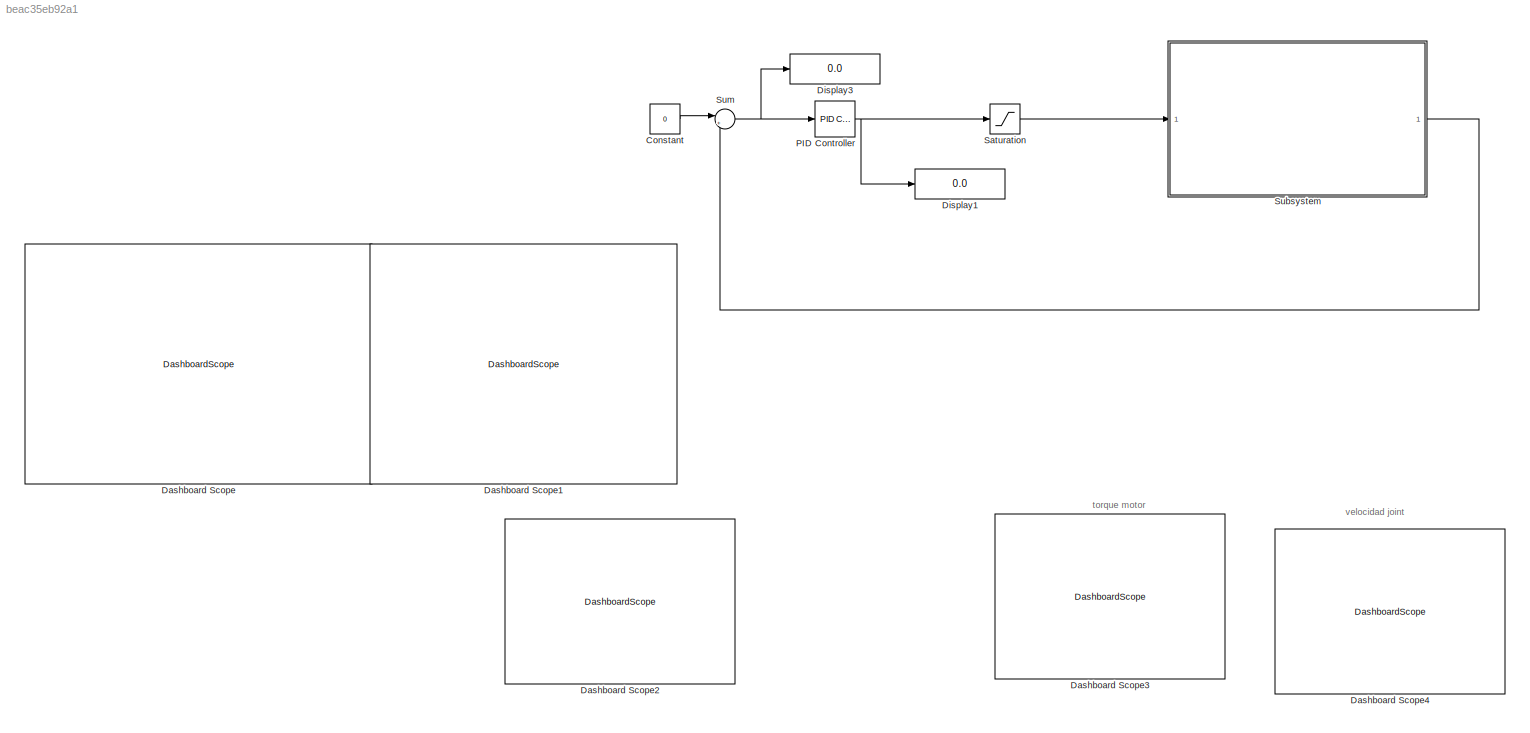
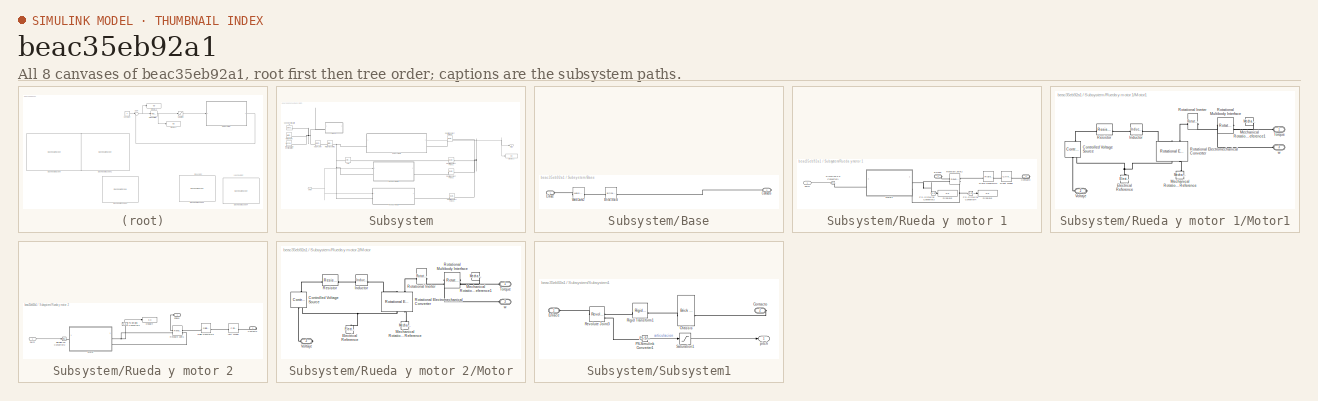
[diagram: thumbnail index - all 8 canvases of the model, root first then tree order]
MODEL slx_beac35eb92a1
KIND model
CONFIG AbsTol = auto
CONFIG EnableMultiTasking = off
CONFIG FixedStep = auto
CONFIG MaxStep = 5e-3
CONFIG MinStep = auto
CONFIG RelTol = 1e-3
CONFIG SampleTimeConstraint = Unconstrained
CONFIG SolverName = ode15s
CONFIG StartTime = 0.0
CONFIG StopTime = 10
BLOCK [Constant] Constant
  Value = 0
BLOCK [DashboardScope] Dashboard Scope
BLOCK [DashboardScope] Dashboard Scope1
BLOCK [DashboardScope] Dashboard Scope2
BLOCK [DashboardScope] Dashboard Scope3
BLOCK [DashboardScope] Dashboard Scope4
BLOCK [Display] Display1
  Decimation = 1
BLOCK [Display] Display3
  Decimation = 1
BLOCK [Reference] PID Controller  REF=slpidlib/PID Controller
  LibrarySourceBlock = simulink/Continuous/PID Controller
  SourceBlock = slpidlib/PID Controller
  SourceType = PID 1dof
BLOCK [Saturate] Saturation
  LowerLimit = -255
  NameLocation = right
  UpperLimit = 255
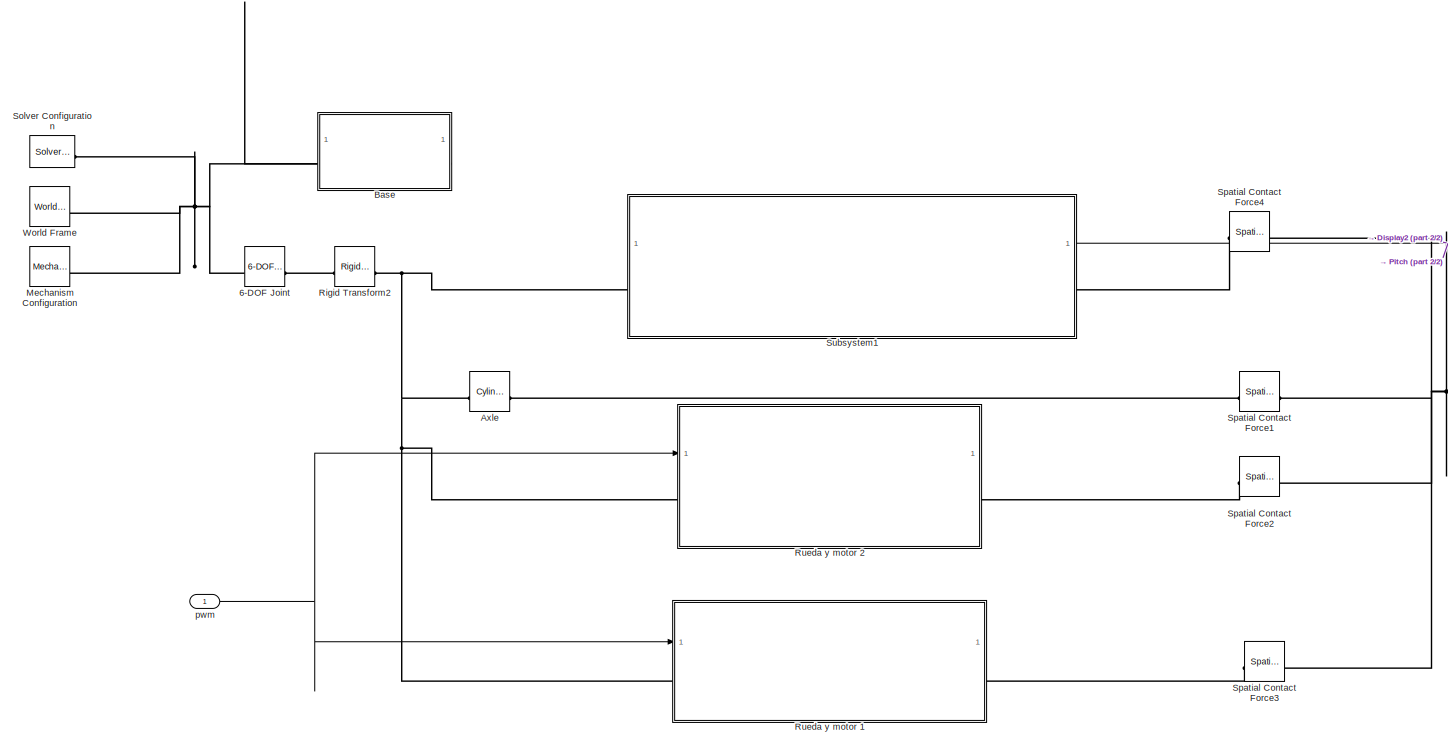
[diagram: Subsystem - part 1/2, most of the canvas]
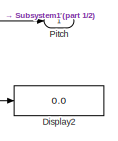
[diagram: Subsystem - part 2/2, middle right region]
BLOCK [SubSystem] Subsystem
BLOCK [Reference] Subsystem/6-DOF Joint  REF=sm_lib/Joints/6-DOF Joint
  SourceBlock = sm_lib/Joints/6-DOF Joint
  SourceType = 6-DOF Joint
BLOCK [Reference] Subsystem/Axle  REF=sm_lib/Body Elements/Cylindrical Solid
  NameLocation = top
  SourceBlock = sm_lib/Body Elements/Cylindrical Solid
  SourceType = Cylindrical Solid
BLOCK [SubSystem] Subsystem/Base
BLOCK [Reference] Subsystem/Base/Brick Solid  REF=sm_lib/Body Elements/Brick Solid
  NameLocation = top
  SourceBlock = sm_lib/Body Elements/Brick Solid
  SourceType = Brick Solid
BLOCK [PMIOPort] Subsystem/Base/Contacto
  Port = 2
  Side = Right
BLOCK [PMIOPort] Subsystem/Base/Enlace
  Side = Left
BLOCK [Reference] Subsystem/Base/Weld Joint2  REF=sm_lib/Joints/Weld Joint
  SourceBlock = sm_lib/Joints/Weld Joint
  SourceType = Weld Joint
BLOCK [Display] Subsystem/Display2
  Decimation = 1
BLOCK [Reference] Subsystem/Mechanism Configuration  REF=sm_lib/Utilities/Mechanism
Configuration
  SourceBlock = sm_lib/Utilities/Mechanism\nConfiguration
  SourceType = Mechanism\nConfiguration
BLOCK [Outport] Subsystem/Pitch
BLOCK [Reference] Subsystem/Rigid Transform2  REF=sm_lib/Frames and
Transforms/Rigid
Transform
  SourceBlock = sm_lib/Frames and\nTransforms/Rigid\nTransform
  SourceType = Rigid\nTransform
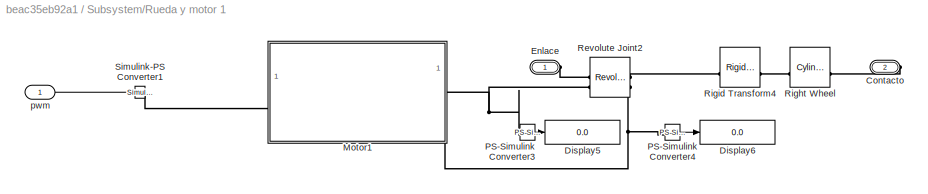
BLOCK [SubSystem] Subsystem/Rueda y motor 1
  PortSchema = {"entries":[{"content":{"sides":[{"content":{"connectorIds":["LConn1","In1"]},"type":"ConnectorPlacement.EquallySpacedRectSide","uuid":"375b66b7-af66-4e77-84dc-5362bf556b25"},{"content":{"connectorIds":["RConn1"],"side":"RIGHT"},"type":"ConnectorPlacement.EquallySpacedRectSide","uuid":"61738b0e-159b-4922-8d26-6bdb85cd6176"},{"content":{"side":"TOP"},"type":"ConnectorPlacement.EquallySpacedRectSide...<+233ch>
BLOCK [PMIOPort] Subsystem/Rueda y motor 1/Contacto
  Port = 2
  Side = Right
BLOCK [Display] Subsystem/Rueda y motor 1/Display5
  Decimation = 1
BLOCK [Display] Subsystem/Rueda y motor 1/Display6
  Decimation = 1
BLOCK [PMIOPort] Subsystem/Rueda y motor 1/Enlace
  Side = Left
BLOCK [SubSystem] Subsystem/Rueda y motor 1/Motor1
  NameLocation = top
BLOCK [Reference] Subsystem/Rueda y motor 1/Motor1/Controlled Voltage Source  REF=fl_lib/Electrical/Electrical Sources/Controlled Voltage
Source
  NameLocation = right
  SourceBlock = fl_lib/Electrical/Electrical Sources/Controlled Voltage\nSource
  SourceType = Controlled Voltage\nSource
BLOCK [Reference] Subsystem/Rueda y motor 1/Motor1/Electrical Reference  REF=fl_lib/Electrical/Electrical Elements/Electrical Reference
  NameLocation = right
  SourceBlock = fl_lib/Electrical/Electrical Elements/Electrical Reference
  SourceType = Electrical Reference
BLOCK [Reference] Subsystem/Rueda y motor 1/Motor1/Inductor  REF=fl_lib/Electrical/Electrical Elements/Inductor
  SourceBlock = fl_lib/Electrical/Electrical Elements/Inductor
  SourceType = Inductor
BLOCK [Reference] Subsystem/Rueda y motor 1/Motor1/Mechanical Rotational Reference  REF=fl_lib/Mechanical/Rotational Elements/Mechanical
Rotational Reference
  NameLocation = right
  SourceBlock = fl_lib/Mechanical/Rotational Elements/Mechanical\nRotational Reference
  SourceType = Mechanical\nRotational Reference
BLOCK [Reference] Subsystem/Rueda y motor 1/Motor1/Mechanical Rotational Reference1  REF=fl_lib/Mechanical/Rotational Elements/Mechanical
Rotational Reference
  NameLocation = top
  SourceBlock = fl_lib/Mechanical/Rotational Elements/Mechanical\nRotational Reference
  SourceType = Mechanical\nRotational Reference
BLOCK [Reference] Subsystem/Rueda y motor 1/Motor1/Resistor  REF=fl_lib/Electrical/Electrical Elements/Resistor
  SourceBlock = fl_lib/Electrical/Electrical Elements/Resistor
  SourceType = Resistor
BLOCK [Reference] Subsystem/Rueda y motor 1/Motor1/Rotational Electromechanical Converter  REF=fl_lib/Electrical/Electrical Elements/Rotational
Electromechanical
Converter
  NameLocation = right
  SourceBlock = fl_lib/Electrical/Electrical Elements/Rotational\nElectromechanical\nConverter
  SourceType = Rotational\nElectromechanical\nConverter
BLOCK [Reference] Subsystem/Rueda y motor 1/Motor1/Rotational Inerter  REF=fl_lib/Mechanical/Rotational Elements/Rotational Inerter
  SourceBlock = fl_lib/Mechanical/Rotational Elements/Rotational Inerter
  SourceType = Rotational Inerter
BLOCK [Reference] Subsystem/Rueda y motor 1/Motor1/Rotational Multibody Interface  REF=fl_lib/Mechanical/Multibody Interfaces/Rotational Multibody
Interface
  NameLocation = top
  SourceBlock = fl_lib/Mechanical/Multibody Interfaces/Rotational Multibody\nInterface
  SourceType = Rotational Multibody\nInterface
BLOCK [PMIOPort] Subsystem/Rueda y motor 1/Motor1/Torque
  NameLocation = top
  Side = Left
BLOCK [PMIOPort] Subsystem/Rueda y motor 1/Motor1/Voltaje
  Port = 2
  Side = Right
BLOCK [PMIOPort] Subsystem/Rueda y motor 1/Motor1/w
  NameLocation = top
  Port = 3
  Side = Left
BLOCK [Reference] Subsystem/Rueda y motor 1/PS-Simulink Converter3  REF=nesl_utility/PS-Simulink
Converter
  SourceBlock = nesl_utility/PS-Simulink\nConverter
  SourceType = PS-Simulink\nConverter
BLOCK [Reference] Subsystem/Rueda y motor 1/PS-Simulink Converter4  REF=nesl_utility/PS-Simulink
Converter
  NameLocation = left
  SourceBlock = nesl_utility/PS-Simulink\nConverter
  SourceType = PS-Simulink\nConverter
BLOCK [Reference] Subsystem/Rueda y motor 1/Revolute Joint2  REF=sm_lib/Joints/Revolute Joint
  SourceBlock = sm_lib/Joints/Revolute Joint
  SourceType = Revolute Joint
BLOCK [Reference] Subsystem/Rueda y motor 1/Right Wheel  REF=sm_lib/Body Elements/Cylindrical Solid
  NameLocation = top
  SourceBlock = sm_lib/Body Elements/Cylindrical Solid
  SourceType = Cylindrical Solid
BLOCK [Reference] Subsystem/Rueda y motor 1/Rigid Transform4  REF=sm_lib/Frames and
Transforms/Rigid
Transform
  SourceBlock = sm_lib/Frames and\nTransforms/Rigid\nTransform
  SourceType = Rigid\nTransform
BLOCK [Reference] Subsystem/Rueda y motor 1/Simulink-PS Converter1  REF=nesl_utility/Simulink-PS
Converter
  SourceBlock = nesl_utility/Simulink-PS\nConverter
  SourceType = Simulink-PS\nConverter
BLOCK [Inport] Subsystem/Rueda y motor 1/pwm
BLOCK [SubSystem] Subsystem/Rueda y motor 2
  PortSchema = {"entries":[{"content":{"sides":[{"content":{"connectorIds":["LConn1","In1"]},"type":"ConnectorPlacement.EquallySpacedRectSide","uuid":"375b66b7-af66-4e77-84dc-5362bf556b25"},{"content":{"connectorIds":["RConn1"],"side":"RIGHT"},"type":"ConnectorPlacement.EquallySpacedRectSide","uuid":"61738b0e-159b-4922-8d26-6bdb85cd6176"},{"content":{"side":"TOP"},"type":"ConnectorPlacement.EquallySpacedRectSide...<+233ch>
BLOCK [PMIOPort] Subsystem/Rueda y motor 2/Contacto
  Port = 2
  Side = Right
BLOCK [Display] Subsystem/Rueda y motor 2/Display4
  Decimation = 1
BLOCK [PMIOPort] Subsystem/Rueda y motor 2/Enlace
  Side = Left
BLOCK [Reference] Subsystem/Rueda y motor 2/Left Wheel  REF=sm_lib/Body Elements/Cylindrical Solid
  NameLocation = top
  SourceBlock = sm_lib/Body Elements/Cylindrical Solid
  SourceType = Cylindrical Solid
BLOCK [SubSystem] Subsystem/Rueda y motor 2/Motor
  NameLocation = top
BLOCK [Reference] Subsystem/Rueda y motor 2/Motor/Controlled Voltage Source  REF=fl_lib/Electrical/Electrical Sources/Controlled Voltage
Source
  NameLocation = right
  SourceBlock = fl_lib/Electrical/Electrical Sources/Controlled Voltage\nSource
  SourceType = Controlled Voltage\nSource
BLOCK [Reference] Subsystem/Rueda y motor 2/Motor/Electrical Reference  REF=fl_lib/Electrical/Electrical Elements/Electrical Reference
  NameLocation = right
  SourceBlock = fl_lib/Electrical/Electrical Elements/Electrical Reference
  SourceType = Electrical Reference
BLOCK [Reference] Subsystem/Rueda y motor 2/Motor/Inductor  REF=fl_lib/Electrical/Electrical Elements/Inductor
  SourceBlock = fl_lib/Electrical/Electrical Elements/Inductor
  SourceType = Inductor
BLOCK [Reference] Subsystem/Rueda y motor 2/Motor/Mechanical Rotational Reference  REF=fl_lib/Mechanical/Rotational Elements/Mechanical
Rotational Reference
  NameLocation = right
  SourceBlock = fl_lib/Mechanical/Rotational Elements/Mechanical\nRotational Reference
  SourceType = Mechanical\nRotational Reference
BLOCK [Reference] Subsystem/Rueda y motor 2/Motor/Mechanical Rotational Reference1  REF=fl_lib/Mechanical/Rotational Elements/Mechanical
Rotational Reference
  NameLocation = top
  SourceBlock = fl_lib/Mechanical/Rotational Elements/Mechanical\nRotational Reference
  SourceType = Mechanical\nRotational Reference
BLOCK [Reference] Subsystem/Rueda y motor 2/Motor/Resistor  REF=fl_lib/Electrical/Electrical Elements/Resistor
  SourceBlock = fl_lib/Electrical/Electrical Elements/Resistor
  SourceType = Resistor
BLOCK [Reference] Subsystem/Rueda y motor 2/Motor/Rotational Electromechanical Converter  REF=fl_lib/Electrical/Electrical Elements/Rotational
Electromechanical
Converter
  NameLocation = right
  SourceBlock = fl_lib/Electrical/Electrical Elements/Rotational\nElectromechanical\nConverter
  SourceType = Rotational\nElectromechanical\nConverter
BLOCK [Reference] Subsystem/Rueda y motor 2/Motor/Rotational Inerter  REF=fl_lib/Mechanical/Rotational Elements/Rotational Inerter
  SourceBlock = fl_lib/Mechanical/Rotational Elements/Rotational Inerter
  SourceType = Rotational Inerter
BLOCK [Reference] Subsystem/Rueda y motor 2/Motor/Rotational Multibody Interface  REF=fl_lib/Mechanical/Multibody Interfaces/Rotational Multibody
Interface
  NameLocation = top
  SourceBlock = fl_lib/Mechanical/Multibody Interfaces/Rotational Multibody\nInterface
  SourceType = Rotational Multibody\nInterface
BLOCK [PMIOPort] Subsystem/Rueda y motor 2/Motor/Torque
  NameLocation = top
  Side = Left
BLOCK [PMIOPort] Subsystem/Rueda y motor 2/Motor/Voltaje
  Port = 2
  Side = Right
BLOCK [PMIOPort] Subsystem/Rueda y motor 2/Motor/w
  NameLocation = top
  Port = 3
  Side = Left
BLOCK [Reference] Subsystem/Rueda y motor 2/PS-Simulink Converter2  REF=nesl_utility/PS-Simulink
Converter
  NameLocation = right
  SourceBlock = nesl_utility/PS-Simulink\nConverter
  SourceType = PS-Simulink\nConverter
BLOCK [Reference] Subsystem/Rueda y motor 2/Revolute Joint1  REF=sm_lib/Joints/Revolute Joint
  SourceBlock = sm_lib/Joints/Revolute Joint
  SourceType = Revolute Joint
BLOCK [Reference] Subsystem/Rueda y motor 2/Rigid Transform3  REF=sm_lib/Frames and
Transforms/Rigid
Transform
  SourceBlock = sm_lib/Frames and\nTransforms/Rigid\nTransform
  SourceType = Rigid\nTransform
BLOCK [Reference] Subsystem/Rueda y motor 2/Simulink-PS Converter2  REF=nesl_utility/Simulink-PS
Converter
  SourceBlock = nesl_utility/Simulink-PS\nConverter
  SourceType = Simulink-PS\nConverter
BLOCK [Inport] Subsystem/Rueda y motor 2/pwm
BLOCK [Reference] Subsystem/Solver Configuration  REF=nesl_utility/Solver
Configuration
  SourceBlock = nesl_utility/Solver\nConfiguration
  SourceType = Solver\nConfiguration
BLOCK [Reference] Subsystem/Spatial Contact Force1  REF=sm_lib/Forces and
Torques/Spatial
Contact Force
  SourceBlock = sm_lib/Forces and\nTorques/Spatial\nContact Force
  SourceType = Spatial\nContact Force
BLOCK [Reference] Subsystem/Spatial Contact Force2  REF=sm_lib/Forces and
Torques/Spatial
Contact Force
  SourceBlock = sm_lib/Forces and\nTorques/Spatial\nContact Force
  SourceType = Spatial\nContact Force
BLOCK [Reference] Subsystem/Spatial Contact Force3  REF=sm_lib/Forces and
Torques/Spatial
Contact Force
  SourceBlock = sm_lib/Forces and\nTorques/Spatial\nContact Force
  SourceType = Spatial\nContact Force
BLOCK [Reference] Subsystem/Spatial Contact Force4  REF=sm_lib/Forces and
Torques/Spatial
Contact Force
  SourceBlock = sm_lib/Forces and\nTorques/Spatial\nContact Force
  SourceType = Spatial\nContact Force
BLOCK [SubSystem] Subsystem/Subsystem1
  PortSchema = {"entries":[{"content":{"sides":[{"content":{"connectorIds":["LConn1"]},"type":"ConnectorPlacement.EquallySpacedRectSide","uuid":"1aa38bd7-26a3-4eeb-8142-358b94426873"},{"content":{"connectorIds":["RConn1","Out1"],"side":"RIGHT"},"type":"ConnectorPlacement.EquallySpacedRectSide","uuid":"5f21b4c3-915c-4bc7-aff0-22a874fb5836"},{"content":{"side":"TOP"},"type":"ConnectorPlacement.EquallySpacedRectSid...<+234ch>
BLOCK [Reference] Subsystem/Subsystem1/Chassis  REF=sm_lib/Body Elements/Brick Solid
  NameLocation = top
  SourceBlock = sm_lib/Body Elements/Brick Solid
  SourceType = Brick Solid
BLOCK [PMIOPort] Subsystem/Subsystem1/Contacto
  Port = 2
  Side = Right
BLOCK [PMIOPort] Subsystem/Subsystem1/Enlace
  Side = Left
BLOCK [Reference] Subsystem/Subsystem1/PS-Simulink Converter1  REF=nesl_utility/PS-Simulink
Converter
  SourceBlock = nesl_utility/PS-Simulink\nConverter
  SourceType = PS-Simulink\nConverter
BLOCK [Reference] Subsystem/Subsystem1/Revolute Joint3  REF=sm_lib/Joints/Revolute Joint
  SourceBlock = sm_lib/Joints/Revolute Joint
  SourceType = Revolute Joint
BLOCK [Reference] Subsystem/Subsystem1/Rigid Transform1  REF=sm_lib/Frames and
Transforms/Rigid
Transform
  SourceBlock = sm_lib/Frames and\nTransforms/Rigid\nTransform
  SourceType = Rigid\nTransform
BLOCK [Saturate] Subsystem/Subsystem1/Saturation1
  LowerLimit = -pi/2
  UpperLimit = pi/2
BLOCK [Outport] Subsystem/Subsystem1/pitch
BLOCK [Reference] Subsystem/World Frame  REF=sm_lib/Frames and
Transforms/World Frame
  SourceBlock = sm_lib/Frames and\nTransforms/World Frame
  SourceType = World Frame
BLOCK [Inport] Subsystem/pwm
BLOCK [Sum] Sum
  Inputs = |++
ANNOTATION (root): torque motor
ANNOTATION (root): velocidad joint
LINE Constant:1 -> Sum:1
NET PID Controller:1 -> Display1:1, Saturation:1
LINE Saturation:1 -> Subsystem:1
LINE Subsystem/Rueda y motor 1/PS-Simulink Converter3:1 -> Subsystem/Rueda y motor 1/Display5:1
LINE Subsystem/Rueda y motor 1/PS-Simulink Converter4:1 -> Subsystem/Rueda y motor 1/Display6:1
LINE Subsystem/Rueda y motor 1/pwm:1 -> Subsystem/Rueda y motor 1/Simulink-PS Converter1:1
LINE Subsystem/Rueda y motor 2/PS-Simulink Converter2:1 -> Subsystem/Rueda y motor 2/Display4:1
LINE Subsystem/Rueda y motor 2/pwm:1 -> Subsystem/Rueda y motor 2/Simulink-PS Converter2:1
LINE Subsystem/Subsystem1/PS-Simulink Converter1:1 -> Subsystem/Subsystem1/Saturation1:1
LINE Subsystem/Subsystem1/Saturation1:1 -> Subsystem/Subsystem1/pitch:1
NET Subsystem/Subsystem1:1 -> Subsystem/Display2:1, Subsystem/Pitch:1
NET Subsystem/pwm:1 -> Subsystem/Rueda y motor 1:1, Subsystem/Rueda y motor 2:1
LINE Subsystem:1 -> Sum:2
NET Sum:1 -> Display3:1, PID Controller:1
PNET net1: Subsystem/6-DOF Joint:LConn1 -- Subsystem/Base:LConn1 -- Subsystem/Mechanism Configuration:RConn1 -- Subsystem/Solver Configuration:RConn1 -- Subsystem/World Frame:RConn1
PLINE Subsystem/6-DOF Joint:RConn1 -- Subsystem/Rigid Transform2:LConn1
PLINE Subsystem/Axle:LConn1 -- Subsystem/Spatial Contact Force1:LConn1
PNET net2: Subsystem/Axle:RConn1 -- Subsystem/Rigid Transform2:RConn1 -- Subsystem/Rueda y motor 1:LConn1 -- Subsystem/Rueda y motor 2:LConn1 -- Subsystem/Subsystem1:LConn1
PLINE Subsystem/Base/Brick Solid:LConn1 -- Subsystem/Base/Contacto:RConn1
PLINE Subsystem/Base/Brick Solid:RConn1 -- Subsystem/Base/Weld Joint2:RConn1
PLINE Subsystem/Base/Enlace:RConn1 -- Subsystem/Base/Weld Joint2:LConn1
PNET net3: Subsystem/Base:RConn1 -- Subsystem/Spatial Contact Force1:RConn1 -- Subsystem/Spatial Contact Force2:RConn1 -- Subsystem/Spatial Contact Force3:RConn1 -- Subsystem/Spatial Contact Force4:RConn1
PLINE Subsystem/Rueda y motor 1/Contacto:RConn1 -- Subsystem/Rueda y motor 1/Right Wheel:LConn1
PLINE Subsystem/Rueda y motor 1/Enlace:RConn1 -- Subsystem/Rueda y motor 1/Revolute Joint2:LConn1
PLINE Subsystem/Rueda y motor 1/Motor1/Controlled Voltage Source:LConn1 -- Subsystem/Rueda y motor 1/Motor1/Resistor:LConn1
PLINE Subsystem/Rueda y motor 1/Motor1/Controlled Voltage Source:RConn1 -- Subsystem/Rueda y motor 1/Motor1/Voltaje:RConn1
PNET net4: Subsystem/Rueda y motor 1/Motor1/Controlled Voltage Source:RConn2 -- Subsystem/Rueda y motor 1/Motor1/Electrical Reference:LConn1 -- Subsystem/Rueda y motor 1/Motor1/Rotational Electromechanical Converter:RConn1
PLINE Subsystem/Rueda y motor 1/Motor1/Inductor:LConn1 -- Subsystem/Rueda y motor 1/Motor1/Resistor:RConn1
PLINE Subsystem/Rueda y motor 1/Motor1/Inductor:RConn1 -- Subsystem/Rueda y motor 1/Motor1/Rotational Electromechanical Converter:LConn1
PLINE Subsystem/Rueda y motor 1/Motor1/Mechanical Rotational Reference1:LConn1 -- Subsystem/Rueda y motor 1/Motor1/Rotational Multibody Interface:LConn2
PLINE Subsystem/Rueda y motor 1/Motor1/Mechanical Rotational Reference:LConn1 -- Subsystem/Rueda y motor 1/Motor1/Rotational Electromechanical Converter:RConn2
PLINE Subsystem/Rueda y motor 1/Motor1/Rotational Electromechanical Converter:LConn2 -- Subsystem/Rueda y motor 1/Motor1/Rotational Inerter:LConn1
PLINE Subsystem/Rueda y motor 1/Motor1/Rotational Inerter:RConn1 -- Subsystem/Rueda y motor 1/Motor1/Rotational Multibody Interface:RConn2
PLINE Subsystem/Rueda y motor 1/Motor1/Rotational Multibody Interface:LConn1 -- Subsystem/Rueda y motor 1/Motor1/Torque:RConn1
PLINE Subsystem/Rueda y motor 1/Motor1/Rotational Multibody Interface:RConn1 -- Subsystem/Rueda y motor 1/Motor1/w:RConn1
PNET net5: Subsystem/Rueda y motor 1/Motor1:LConn1 -- Subsystem/Rueda y motor 1/PS-Simulink Converter3:LConn1 -- Subsystem/Rueda y motor 1/Revolute Joint2:LConn2
PNET net6: Subsystem/Rueda y motor 1/Motor1:LConn2 -- Subsystem/Rueda y motor 1/PS-Simulink Converter4:LConn1 -- Subsystem/Rueda y motor 1/Revolute Joint2:RConn2
PLINE Subsystem/Rueda y motor 1/Motor1:RConn1 -- Subsystem/Rueda y motor 1/Simulink-PS Converter1:RConn1
PLINE Subsystem/Rueda y motor 1/Revolute Joint2:RConn1 -- Subsystem/Rueda y motor 1/Rigid Transform4:LConn1
PLINE Subsystem/Rueda y motor 1/Right Wheel:RConn1 -- Subsystem/Rueda y motor 1/Rigid Transform4:RConn1
PLINE Subsystem/Rueda y motor 1:RConn1 -- Subsystem/Spatial Contact Force3:LConn1
PLINE Subsystem/Rueda y motor 2/Contacto:RConn1 -- Subsystem/Rueda y motor 2/Left Wheel:LConn1
PLINE Subsystem/Rueda y motor 2/Enlace:RConn1 -- Subsystem/Rueda y motor 2/Revolute Joint1:LConn1
PLINE Subsystem/Rueda y motor 2/Left Wheel:RConn1 -- Subsystem/Rueda y motor 2/Rigid Transform3:RConn1
PLINE Subsystem/Rueda y motor 2/Motor/Controlled Voltage Source:LConn1 -- Subsystem/Rueda y motor 2/Motor/Resistor:LConn1
PLINE Subsystem/Rueda y motor 2/Motor/Controlled Voltage Source:RConn1 -- Subsystem/Rueda y motor 2/Motor/Voltaje:RConn1
PNET net7: Subsystem/Rueda y motor 2/Motor/Controlled Voltage Source:RConn2 -- Subsystem/Rueda y motor 2/Motor/Electrical Reference:LConn1 -- Subsystem/Rueda y motor 2/Motor/Rotational Electromechanical Converter:RConn1
PLINE Subsystem/Rueda y motor 2/Motor/Inductor:LConn1 -- Subsystem/Rueda y motor 2/Motor/Resistor:RConn1
PLINE Subsystem/Rueda y motor 2/Motor/Inductor:RConn1 -- Subsystem/Rueda y motor 2/Motor/Rotational Electromechanical Converter:LConn1
PLINE Subsystem/Rueda y motor 2/Motor/Mechanical Rotational Reference1:LConn1 -- Subsystem/Rueda y motor 2/Motor/Rotational Multibody Interface:LConn2
PLINE Subsystem/Rueda y motor 2/Motor/Mechanical Rotational Reference:LConn1 -- Subsystem/Rueda y motor 2/Motor/Rotational Electromechanical Converter:RConn2
PLINE Subsystem/Rueda y motor 2/Motor/Rotational Electromechanical Converter:LConn2 -- Subsystem/Rueda y motor 2/Motor/Rotational Inerter:LConn1
PLINE Subsystem/Rueda y motor 2/Motor/Rotational Inerter:RConn1 -- Subsystem/Rueda y motor 2/Motor/Rotational Multibody Interface:RConn2
PLINE Subsystem/Rueda y motor 2/Motor/Rotational Multibody Interface:LConn1 -- Subsystem/Rueda y motor 2/Motor/Torque:RConn1
PLINE Subsystem/Rueda y motor 2/Motor/Rotational Multibody Interface:RConn1 -- Subsystem/Rueda y motor 2/Motor/w:RConn1
PNET net8: Subsystem/Rueda y motor 2/Motor:LConn1 -- Subsystem/Rueda y motor 2/PS-Simulink Converter2:LConn1 -- Subsystem/Rueda y motor 2/Revolute Joint1:LConn2
PLINE Subsystem/Rueda y motor 2/Motor:LConn2 -- Subsystem/Rueda y motor 2/Revolute Joint1:RConn2
PLINE Subsystem/Rueda y motor 2/Motor:RConn1 -- Subsystem/Rueda y motor 2/Simulink-PS Converter2:RConn1
PLINE Subsystem/Rueda y motor 2/Revolute Joint1:RConn1 -- Subsystem/Rueda y motor 2/Rigid Transform3:LConn1
PLINE Subsystem/Rueda y motor 2:RConn1 -- Subsystem/Spatial Contact Force2:LConn1
PLINE Subsystem/Spatial Contact Force4:LConn1 -- Subsystem/Subsystem1:RConn1
PLINE Subsystem/Subsystem1/Chassis:LConn1 -- Subsystem/Subsystem1/Contacto:RConn1
PLINE Subsystem/Subsystem1/Chassis:RConn1 -- Subsystem/Subsystem1/Rigid Transform1:RConn1
PLINE Subsystem/Subsystem1/Enlace:RConn1 -- Subsystem/Subsystem1/Revolute Joint3:LConn1
PLINE Subsystem/Subsystem1/PS-Simulink Converter1:LConn1 -- Subsystem/Subsystem1/Revolute Joint3:RConn2
PLINE Subsystem/Subsystem1/Revolute Joint3:RConn1 -- Subsystem/Subsystem1/Rigid Transform1:LConn1
note: NET lines group one-source signal fan-out (src -> all destinations, sorted); 1:1 wires keep LINE; PNET lines group multi-terminal physical nets as a canonical sorted terminal list (undirected conserving connections); 2-terminal nets keep the pairwise PLINE form
